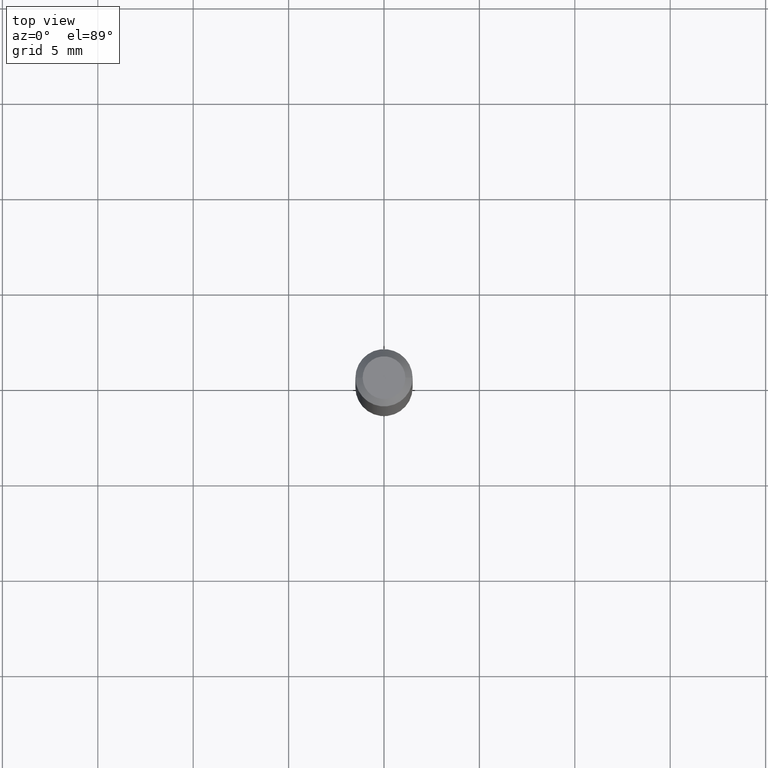
[diagram: clean part render]
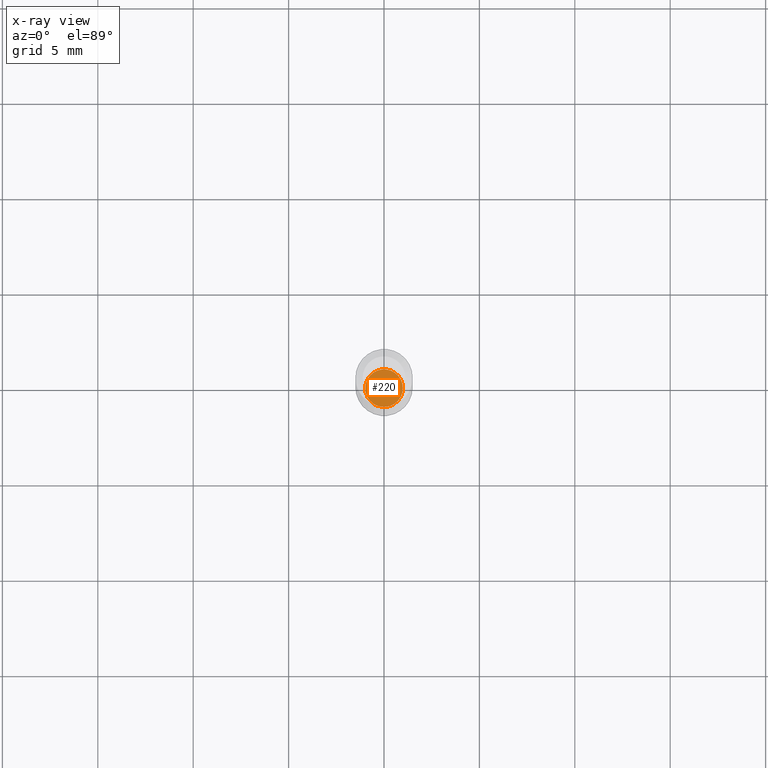
[diagram: x-ray — body ghosted, one internal face saturated and labeled with its STEP entity id]
A machine part, top view, then the same camera in x-ray: the body is ghosted and one INTERNAL B-rep face — a face not visible from any outside direction — is saturated and labeled: STEP entity #220.
In plain terms, the highlighted planar face has unit normal (-0, 0, 1).
Its self-contained STEP definition (entity closure, byte-faithful):
#10 = VERTEX_POINT ( 'NONE', #48 ) ;
#19 = AXIS2_PLACEMENT_3D ( 'NONE', #66, #309, #408 ) ;
#21 = CARTESIAN_POINT ( 'NONE',  ( -0.03885000000000000259, -4.092639556214709577E-15, -1.252000000000000224 ) ) ;
#28 = PLANE ( 'NONE',  #19 ) ;
#36 = VERTEX_POINT ( 'NONE', #21 ) ;
#45 = CARTESIAN_POINT ( 'NONE',  ( 3.061726945343791391E-29, -4.371334636231619274E-15, -1.252000000000000224 ) ) ;
#48 = CARTESIAN_POINT ( 'NONE',  ( 0.03885000000000000259, -4.642622736259730395E-15, -1.252000000000000224 ) ) ;
#66 = CARTESIAN_POINT ( 'NONE',  ( 3.061726945343791391E-29, -4.371334636231619274E-15, -1.252000000000000224 ) ) ;
#72 = ORIENTED_EDGE ( 'NONE', *, *, #307, .F. ) ;
#80 = AXIS2_PLACEMENT_3D ( 'NONE', #45, #144, #148 ) ;
#133 = AXIS2_PLACEMENT_3D ( 'NONE', #243, #387, #198 ) ;
#144 = DIRECTION ( 'NONE',  ( -2.445468806185136597E-29, 3.491481338843145583E-15, 1.000000000000000000 ) ) ;
#148 = DIRECTION ( 'NONE',  ( 1.000000000000000000, -6.982962677686256455E-15, 0.000000000000000000 ) ) ;
#175 = CIRCLE ( 'NONE', #80, 0.03885000000000000259 ) ;
#198 = DIRECTION ( 'NONE',  ( 1.000000000000000000, -6.982962677686256455E-15, 0.000000000000000000 ) ) ;
#200 = FACE_OUTER_BOUND ( 'NONE', #245, .T. ) ;
#220 = ADVANCED_FACE ( 'NONE', ( #200 ), #28, .F. ) ;
#243 = CARTESIAN_POINT ( 'NONE',  ( 3.061726945343791391E-29, -4.371334636231619274E-15, -1.252000000000000224 ) ) ;
#245 = EDGE_LOOP ( 'NONE', ( #72, #356 ) ) ;
#307 = EDGE_CURVE ( 'NONE', #10, #36, #380, .T. ) ;
#309 = DIRECTION ( 'NONE',  ( -2.438088387897960049E-29, 3.491481338843145188E-15, 1.000000000000000000 ) ) ;
#341 = EDGE_CURVE ( 'NONE', #36, #10, #175, .T. ) ;
#356 = ORIENTED_EDGE ( 'NONE', *, *, #341, .F. ) ;
#380 = CIRCLE ( 'NONE', #133, 0.03885000000000000259 ) ;
#387 = DIRECTION ( 'NONE',  ( -2.445468806185136597E-29, 3.491481338843145583E-15, 1.000000000000000000 ) ) ;
#408 = DIRECTION ( 'NONE',  ( 1.000000000000000000, -6.982962677686265922E-15, 4.876176775795935793E-29 ) ) ;